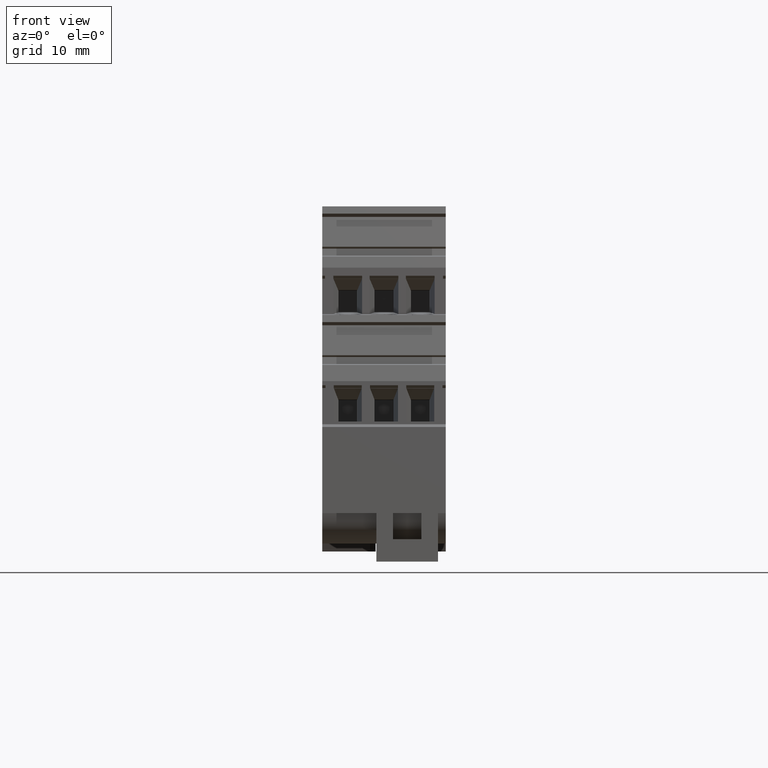
[diagram: clean part render]
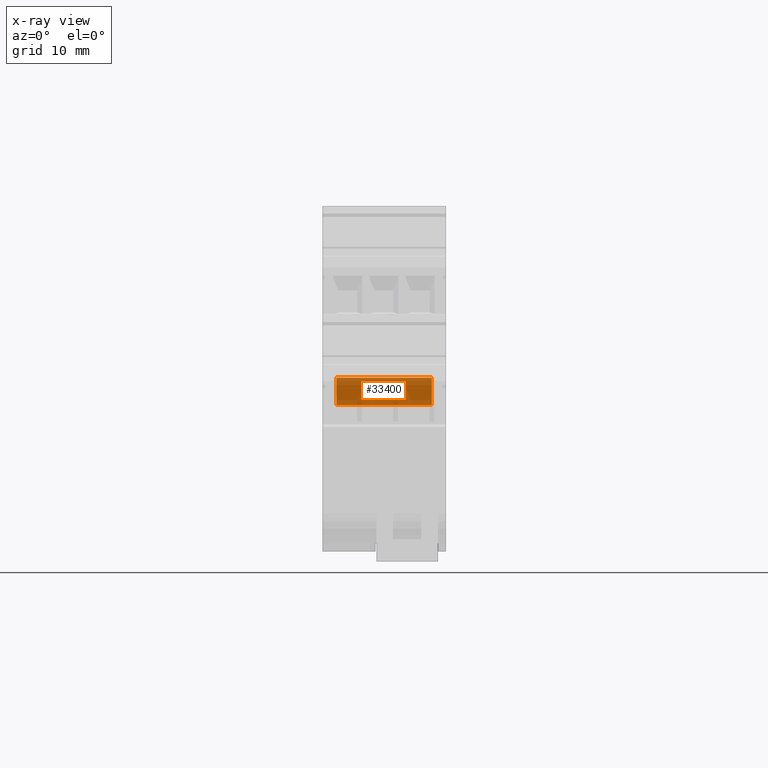
[diagram: x-ray — body ghosted, one internal face saturated and labeled with its STEP entity id]
A machine part, front view, then the same camera in x-ray: the body is ghosted and one INTERNAL B-rep face — a face not visible from any outside direction — is saturated and labeled: STEP entity #33400.
In plain terms, the highlighted planar face has unit normal (0, -1, -0).
Its self-contained STEP definition (entity closure, byte-faithful):
#12940=CARTESIAN_POINT('',(48.3413512925595,32.856274052444,
-46.9999999999999));
#12950=VERTEX_POINT('',#12940);
#12980=CARTESIAN_POINT('',(48.3413512925595,32.856274052444,
2.25000000009247));
#12990=DIRECTION('',(-1.22464679914735E-16,0.,-1.));
#13000=VECTOR('',#12990,1.);
#13010=LINE('',#12980,#13000);
#13020=CARTESIAN_POINT('',(48.3413512925595,32.856274052444,
-33.2999999999999));
#13030=VERTEX_POINT('',#13020);
#13040=EDGE_CURVE('',#13030,#12950,#13010,.T.);
#14200=CARTESIAN_POINT('',(48.3413512925595,-19.3999999999998,
-33.2999999999999));
#14210=DIRECTION('',(2.34801010197241E-52,-1.,-1.31140241098497E-68));
#14220=VECTOR('',#14210,1.);
#14230=LINE('',#14200,#14220);
#14240=CARTESIAN_POINT('',(48.3413512925595,36.756274052444,
-33.2999999999999));
#14250=VERTEX_POINT('',#14240);
#14260=EDGE_CURVE('',#14250,#13030,#14230,.T.);
#14630=CARTESIAN_POINT('',(48.3413512925595,36.756274052444,
-46.9999999999999));
#14640=VERTEX_POINT('',#14630);
#14670=CARTESIAN_POINT('',(48.3413512925595,-19.3999999999998,
-46.9999999999999));
#14680=DIRECTION('',(2.34801010197241E-52,-1.,1.31140241098497E-68));
#14690=VECTOR('',#14680,1.);
#14700=LINE('',#14670,#14690);
#14710=EDGE_CURVE('',#14640,#12950,#14700,.T.);
#18910=CARTESIAN_POINT('',(48.3413512925595,36.756274052444,
2.25000000009247));
#18920=DIRECTION('',(-1.22464679914735E-16,0.,-1.));
#18930=VECTOR('',#18920,1.);
#18940=LINE('',#18910,#18930);
#18950=EDGE_CURVE('',#14250,#14640,#18940,.T.);
#33290=CARTESIAN_POINT('',(48.3413512925595,32.856274052444,
-33.5071067811865));
#33300=DIRECTION('',(-1.,-2.34801010197241E-52,1.22464679914735E-16));
#33310=DIRECTION('',(-1.22464679914735E-16,0.,-1.));
#33320=AXIS2_PLACEMENT_3D('',#33290,#33300,#33310);
#33330=PLANE('',#33320);
#33340=ORIENTED_EDGE('',*,*,#14710,.T.);
#33350=ORIENTED_EDGE('',*,*,#18950,.T.);
#33360=ORIENTED_EDGE('',*,*,#14260,.F.);
#33370=ORIENTED_EDGE('',*,*,#13040,.F.);
#33380=EDGE_LOOP('',(#33370,#33360,#33350,#33340));
#33390=FACE_OUTER_BOUND('',#33380,.T.);
#33400=ADVANCED_FACE('',(#33390),#33330,.T.);